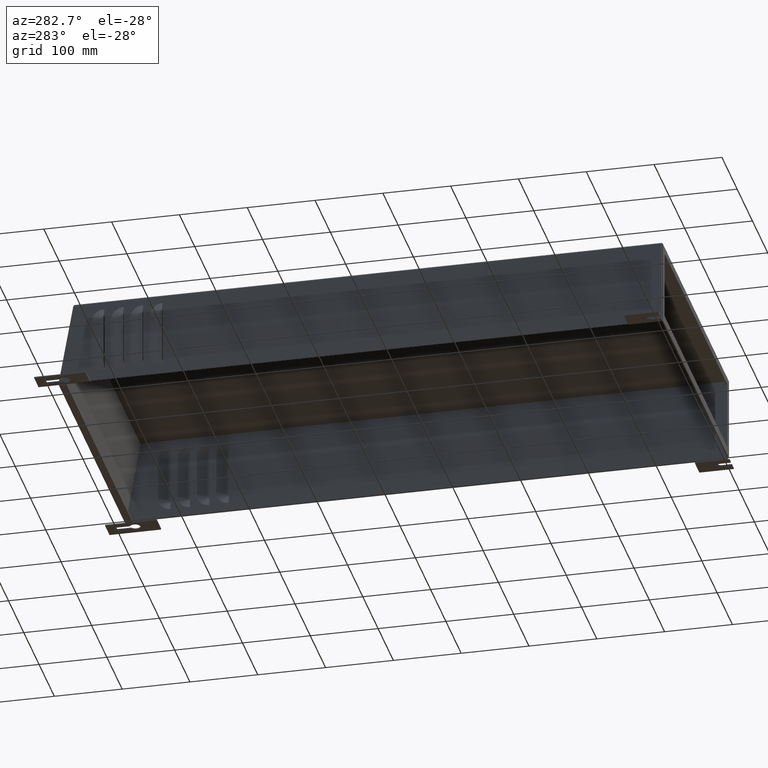
[diagram: clean part render]
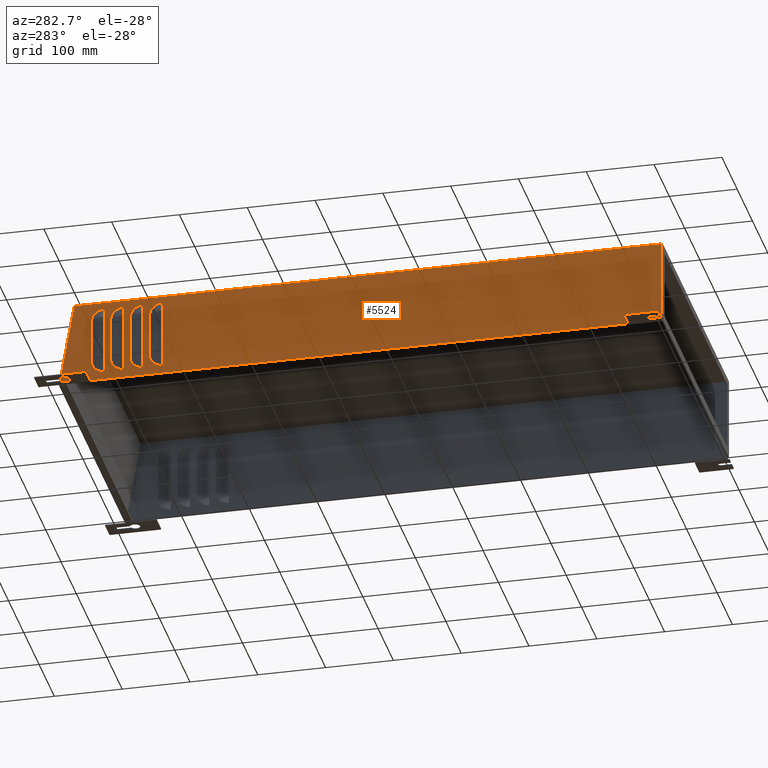
[diagram: same view with one face highlighted and labeled with its STEP entity id]
A machine part, auxiliary view. The second image highlights one B-rep face of the part: STEP entity #5524.
In plain terms, the highlighted planar face has unit normal (-1, -0, -0).
Its self-contained STEP definition (entity closure, byte-faithful):
#51=FACE_BOUND('',#849,.T.);
#52=FACE_BOUND('',#850,.T.);
#53=FACE_BOUND('',#851,.T.);
#54=FACE_BOUND('',#852,.T.);
#253=PLANE('',#6081);
#537=FACE_OUTER_BOUND('',#848,.T.);
#848=EDGE_LOOP('',(#4419,#4420,#4421,#4422,#4423,#4424,#4425,#4426,#4427,
#4428,#4429,#4430));
#849=EDGE_LOOP('',(#4431,#4432,#4433,#4434,#4435,#4436));
#850=EDGE_LOOP('',(#4437,#4438,#4439,#4440,#4441,#4442));
#851=EDGE_LOOP('',(#4443,#4444,#4445,#4446,#4447,#4448));
#852=EDGE_LOOP('',(#4449,#4450,#4451,#4452,#4453,#4454));
#989=CIRCLE('',#5680,0.75);
#1006=CIRCLE('',#5710,0.75);
#1021=CIRCLE('',#5730,0.75);
#1038=CIRCLE('',#5760,0.75);
#1053=CIRCLE('',#5780,0.75);
#1070=CIRCLE('',#5810,0.75);
#1085=CIRCLE('',#5830,0.75);
#1102=CIRCLE('',#5860,0.75);
#1327=LINE('',#7936,#1785);
#1331=LINE('',#7952,#1789);
#1347=LINE('',#8036,#1805);
#1350=LINE('',#8076,#1808);
#1351=LINE('',#8080,#1809);
#1355=LINE('',#8096,#1813);
#1371=LINE('',#8180,#1829);
#1374=LINE('',#8220,#1832);
#1375=LINE('',#8224,#1833);
#1379=LINE('',#8240,#1837);
#1395=LINE('',#8324,#1853);
#1398=LINE('',#8364,#1856);
#1399=LINE('',#8368,#1857);
#1403=LINE('',#8384,#1861);
#1419=LINE('',#8468,#1877);
#1422=LINE('',#8508,#1880);
#1523=LINE('',#9097,#1981);
#1540=LINE('',#9138,#1998);
#1542=LINE('',#9142,#2000);
#1546=LINE('',#9148,#2004);
#1547=LINE('',#9151,#2005);
#1548=LINE('',#9153,#2006);
#1549=LINE('',#9155,#2007);
#1550=LINE('',#9157,#2008);
#1551=LINE('',#9159,#2009);
#1552=LINE('',#9161,#2010);
#1553=LINE('',#9163,#2011);
#1554=LINE('',#9164,#2012);
#1785=VECTOR('',#6347,0.208102228975084);
#1789=VECTOR('',#6359,0.208102228975082);
#1805=VECTOR('',#6431,2.5);
#1808=VECTOR('',#6468,3.58379554204983);
#1809=VECTOR('',#6471,0.208102228975078);
#1813=VECTOR('',#6483,0.208102228975082);
#1829=VECTOR('',#6555,2.5);
#1832=VECTOR('',#6592,3.58379554204984);
#1833=VECTOR('',#6595,0.208102228975084);
#1837=VECTOR('',#6607,0.208102228975082);
#1853=VECTOR('',#6679,2.5);
#1856=VECTOR('',#6716,3.58379554204983);
#1857=VECTOR('',#6719,0.208102228975078);
#1861=VECTOR('',#6731,0.208102228975082);
#1877=VECTOR('',#6803,2.5);
#1880=VECTOR('',#6840,3.58379554204984);
#1981=VECTOR('',#7347,1.9148);
#1998=VECTOR('',#7392,0.0314500000000002);
#2000=VECTOR('',#7396,0.000199999999999981);
#2004=VECTOR('',#7402,0.000199999999999981);
#2005=VECTOR('',#7405,4.8635);
#2006=VECTOR('',#7406,34.0919917236158);
#2007=VECTOR('',#7407,4.93852732690635);
#2008=VECTOR('',#7408,1.78455799429155);
#2009=VECTOR('',#7409,0.000199999999999981);
#2010=VECTOR('',#7410,0.000199999999998583);
#2011=VECTOR('',#7411,0.0314500000000002);
#2012=VECTOR('',#7412,31.2498);
#2231=VERTEX_POINT('',#7934);
#2232=VERTEX_POINT('',#7935);
#2239=VERTEX_POINT('',#7949);
#2240=VERTEX_POINT('',#7951);
#2252=VERTEX_POINT('',#8001);
#2262=VERTEX_POINT('',#8035);
#2265=VERTEX_POINT('',#8078);
#2266=VERTEX_POINT('',#8079);
#2273=VERTEX_POINT('',#8093);
#2274=VERTEX_POINT('',#8095);
#2286=VERTEX_POINT('',#8145);
#2296=VERTEX_POINT('',#8179);
#2299=VERTEX_POINT('',#8222);
#2300=VERTEX_POINT('',#8223);
#2307=VERTEX_POINT('',#8237);
#2308=VERTEX_POINT('',#8239);
#2320=VERTEX_POINT('',#8289);
#2330=VERTEX_POINT('',#8323);
#2333=VERTEX_POINT('',#8366);
#2334=VERTEX_POINT('',#8367);
#2341=VERTEX_POINT('',#8381);
#2342=VERTEX_POINT('',#8383);
#2354=VERTEX_POINT('',#8433);
#2364=VERTEX_POINT('',#8467);
#2506=VERTEX_POINT('',#9094);
#2507=VERTEX_POINT('',#9096);
#2516=VERTEX_POINT('',#9135);
#2517=VERTEX_POINT('',#9137);
#2518=VERTEX_POINT('',#9141);
#2520=VERTEX_POINT('',#9150);
#2521=VERTEX_POINT('',#9152);
#2522=VERTEX_POINT('',#9154);
#2523=VERTEX_POINT('',#9156);
#2524=VERTEX_POINT('',#9158);
#2525=VERTEX_POINT('',#9160);
#2526=VERTEX_POINT('',#9162);
#2720=EDGE_CURVE('',#2231,#2232,#1327,.T.);
#2728=EDGE_CURVE('',#2240,#2239,#1331,.T.);
#2745=EDGE_CURVE('',#2252,#2231,#989,.T.);
#2762=EDGE_CURVE('',#2262,#2252,#1347,.T.);
#2773=EDGE_CURVE('',#2239,#2262,#1006,.T.);
#2775=EDGE_CURVE('',#2232,#2240,#1350,.T.);
#2776=EDGE_CURVE('',#2265,#2266,#1351,.T.);
#2784=EDGE_CURVE('',#2274,#2273,#1355,.T.);
#2801=EDGE_CURVE('',#2286,#2265,#1021,.T.);
#2818=EDGE_CURVE('',#2296,#2286,#1371,.T.);
#2829=EDGE_CURVE('',#2273,#2296,#1038,.T.);
#2831=EDGE_CURVE('',#2266,#2274,#1374,.T.);
#2832=EDGE_CURVE('',#2299,#2300,#1375,.T.);
#2840=EDGE_CURVE('',#2308,#2307,#1379,.T.);
#2857=EDGE_CURVE('',#2320,#2299,#1053,.T.);
#2874=EDGE_CURVE('',#2330,#2320,#1395,.T.);
#2885=EDGE_CURVE('',#2307,#2330,#1070,.T.);
#2887=EDGE_CURVE('',#2300,#2308,#1398,.T.);
#2888=EDGE_CURVE('',#2333,#2334,#1399,.T.);
#2896=EDGE_CURVE('',#2342,#2341,#1403,.T.);
#2913=EDGE_CURVE('',#2354,#2333,#1085,.T.);
#2930=EDGE_CURVE('',#2364,#2354,#1419,.T.);
#2941=EDGE_CURVE('',#2341,#2364,#1102,.T.);
#2943=EDGE_CURVE('',#2334,#2342,#1422,.T.);
#3173=EDGE_CURVE('',#2507,#2506,#1523,.T.);
#3193=EDGE_CURVE('',#2517,#2516,#1540,.T.);
#3195=EDGE_CURVE('',#2518,#2507,#1542,.T.);
#3199=EDGE_CURVE('',#2516,#2518,#1546,.T.);
#3200=EDGE_CURVE('',#2520,#2506,#1547,.T.);
#3201=EDGE_CURVE('',#2520,#2521,#1548,.T.);
#3202=EDGE_CURVE('',#2522,#2521,#1549,.T.);
#3203=EDGE_CURVE('',#2522,#2523,#1550,.T.);
#3204=EDGE_CURVE('',#2523,#2524,#1551,.T.);
#3205=EDGE_CURVE('',#2524,#2525,#1552,.T.);
#3206=EDGE_CURVE('',#2525,#2526,#1553,.T.);
#3207=EDGE_CURVE('',#2526,#2517,#1554,.T.);
#4419=ORIENTED_EDGE('',*,*,#3193,.T.);
#4420=ORIENTED_EDGE('',*,*,#3199,.T.);
#4421=ORIENTED_EDGE('',*,*,#3195,.T.);
#4422=ORIENTED_EDGE('',*,*,#3173,.T.);
#4423=ORIENTED_EDGE('',*,*,#3200,.F.);
#4424=ORIENTED_EDGE('',*,*,#3201,.T.);
#4425=ORIENTED_EDGE('',*,*,#3202,.F.);
#4426=ORIENTED_EDGE('',*,*,#3203,.T.);
#4427=ORIENTED_EDGE('',*,*,#3204,.T.);
#4428=ORIENTED_EDGE('',*,*,#3205,.T.);
#4429=ORIENTED_EDGE('',*,*,#3206,.T.);
#4430=ORIENTED_EDGE('',*,*,#3207,.T.);
#4431=ORIENTED_EDGE('',*,*,#2745,.T.);
#4432=ORIENTED_EDGE('',*,*,#2720,.T.);
#4433=ORIENTED_EDGE('',*,*,#2775,.T.);
#4434=ORIENTED_EDGE('',*,*,#2728,.T.);
#4435=ORIENTED_EDGE('',*,*,#2773,.T.);
#4436=ORIENTED_EDGE('',*,*,#2762,.T.);
#4437=ORIENTED_EDGE('',*,*,#2801,.T.);
#4438=ORIENTED_EDGE('',*,*,#2776,.T.);
#4439=ORIENTED_EDGE('',*,*,#2831,.T.);
#4440=ORIENTED_EDGE('',*,*,#2784,.T.);
#4441=ORIENTED_EDGE('',*,*,#2829,.T.);
#4442=ORIENTED_EDGE('',*,*,#2818,.T.);
#4443=ORIENTED_EDGE('',*,*,#2857,.T.);
#4444=ORIENTED_EDGE('',*,*,#2832,.T.);
#4445=ORIENTED_EDGE('',*,*,#2887,.T.);
#4446=ORIENTED_EDGE('',*,*,#2840,.T.);
#4447=ORIENTED_EDGE('',*,*,#2885,.T.);
#4448=ORIENTED_EDGE('',*,*,#2874,.T.);
#4449=ORIENTED_EDGE('',*,*,#2913,.T.);
#4450=ORIENTED_EDGE('',*,*,#2888,.T.);
#4451=ORIENTED_EDGE('',*,*,#2943,.T.);
#4452=ORIENTED_EDGE('',*,*,#2896,.T.);
#4453=ORIENTED_EDGE('',*,*,#2941,.T.);
#4454=ORIENTED_EDGE('',*,*,#2930,.T.);
#5524=ADVANCED_FACE('',(#537,#51,#52,#53,#54),#253,.T.);
#5680=AXIS2_PLACEMENT_3D('',#8002,#6392,#6393);
#5710=AXIS2_PLACEMENT_3D('',#8073,#6463,#6464);
#5730=AXIS2_PLACEMENT_3D('',#8146,#6516,#6517);
#5760=AXIS2_PLACEMENT_3D('',#8217,#6587,#6588);
#5780=AXIS2_PLACEMENT_3D('',#8290,#6640,#6641);
#5810=AXIS2_PLACEMENT_3D('',#8361,#6711,#6712);
#5830=AXIS2_PLACEMENT_3D('',#8434,#6764,#6765);
#5860=AXIS2_PLACEMENT_3D('',#8505,#6835,#6836);
#6081=AXIS2_PLACEMENT_3D('',#9149,#7403,#7404);
#6347=DIRECTION('',(1.57247581638412E-16,2.06739690681419E-17,-1.));
#6359=DIRECTION('',(1.57247581638412E-16,2.06739690681419E-17,-1.));
#6392=DIRECTION('center_axis',(1.,3.02856690646903E-16,1.57247581638412E-16));
#6393=DIRECTION('ref_axis',(0.,2.06739690681419E-17,-1.));
#6431=DIRECTION('',(-1.57247581638412E-16,2.59067265483079E-16,1.));
#6463=DIRECTION('center_axis',(1.,3.02856690646903E-16,1.57247581638412E-16));
#6464=DIRECTION('ref_axis',(0.,-1.,-2.53791664527492E-16));
#6468=DIRECTION('',(1.57247581638412E-16,2.06739690681419E-17,-1.));
#6471=DIRECTION('',(1.57247581638412E-16,2.06739690681419E-17,-1.));
#6483=DIRECTION('',(1.57247581638412E-16,2.06739690681419E-17,-1.));
#6516=DIRECTION('center_axis',(1.,3.02856690646903E-16,1.57247581638412E-16));
#6517=DIRECTION('ref_axis',(0.,2.06739690681419E-17,-1.));
#6555=DIRECTION('',(-1.57247581638412E-16,2.59067265483079E-16,1.));
#6587=DIRECTION('center_axis',(1.,3.02856690646903E-16,1.57247581638412E-16));
#6588=DIRECTION('ref_axis',(0.,-1.,-2.53791664527492E-16));
#6592=DIRECTION('',(1.57247581638412E-16,2.06739690681419E-17,-1.));
#6595=DIRECTION('',(1.57247581638412E-16,2.06739690681419E-17,-1.));
#6607=DIRECTION('',(1.57247581638412E-16,2.06739690681419E-17,-1.));
#6640=DIRECTION('center_axis',(1.,3.02856690646903E-16,1.57247581638412E-16));
#6641=DIRECTION('ref_axis',(0.,2.06739690681419E-17,-1.));
#6679=DIRECTION('',(-1.57247581638412E-16,2.59067265483079E-16,1.));
#6711=DIRECTION('center_axis',(1.,3.02856690646903E-16,1.57247581638412E-16));
#6712=DIRECTION('ref_axis',(0.,-1.,-2.53791664527492E-16));
#6716=DIRECTION('',(1.57247581638412E-16,2.06739690681419E-17,-1.));
#6719=DIRECTION('',(1.57247581638412E-16,2.06739690681419E-17,-1.));
#6731=DIRECTION('',(1.57247581638412E-16,2.06739690681419E-17,-1.));
#6764=DIRECTION('center_axis',(1.,3.02856690646903E-16,1.57247581638412E-16));
#6765=DIRECTION('ref_axis',(0.,2.06739690681419E-17,-1.));
#6803=DIRECTION('',(-1.57247581638412E-16,2.59067265483079E-16,1.));
#6835=DIRECTION('center_axis',(1.,3.02856690646903E-16,1.57247581638412E-16));
#6836=DIRECTION('ref_axis',(0.,-1.,-2.53791664527492E-16));
#6840=DIRECTION('',(1.57247581638412E-16,2.06739690681419E-17,-1.));
#7347=DIRECTION('',(3.02856690646903E-16,-1.,0.));
#7392=DIRECTION('',(-1.57247581638412E-16,0.,1.));
#7396=DIRECTION('',(1.57247581638412E-16,0.,-1.));
#7402=DIRECTION('',(3.02856690646903E-16,-1.,0.));
#7403=DIRECTION('center_axis',(-1.,-3.02856690646903E-16,-1.57247581638412E-16));
#7404=DIRECTION('ref_axis',(-1.57247581638411E-16,0.,1.));
#7405=DIRECTION('',(1.60812264967664E-16,4.93038065763132E-32,-1.));
#7406=DIRECTION('',(-3.02856690646903E-16,1.,-3.55825625930582E-34));
#7407=DIRECTION('',(-1.02268125114846E-16,-0.173648177666961,0.984807753012203));
#7408=DIRECTION('',(3.02856690646903E-16,-1.,0.));
#7409=DIRECTION('',(-1.57247581638412E-16,0.,1.));
#7410=DIRECTION('',(3.02856690646903E-16,-1.,0.));
#7411=DIRECTION('',(1.57247581638412E-16,0.,-1.));
#7412=DIRECTION('',(3.05286475461148E-16,-1.,0.));
#7934=CARTESIAN_POINT('',(-1.04211155090787E-14,29.0522753192199,-0.426));
#7935=CARTESIAN_POINT('',(-1.03919497678989E-14,29.0522753192199,-0.634102228975084));
#7936=CARTESIAN_POINT('',(-9.94856362673891E-15,29.0522753192199,-3.43114562714467));
#7949=CARTESIAN_POINT('',(-9.79212518252501E-15,29.0522753192199,-4.426));
#7951=CARTESIAN_POINT('',(-9.82372538521669E-15,29.0522753192199,-4.21789777102492));
#7952=CARTESIAN_POINT('',(-9.94856362673891E-15,29.0522753192199,-3.43114562714467));
#8001=CARTESIAN_POINT('',(-1.0530322340835E-14,29.8022753192199,-1.176));
#8002=CARTESIAN_POINT('Origin',(-6.50179822492095E-15,29.0522753192199,
-1.176));
#8035=CARTESIAN_POINT('',(-1.0137203386739E-14,29.8022753192199,-3.676));
#8036=CARTESIAN_POINT('',(-1.04312334648865E-14,29.8022753192199,-1.80614562714468));
#8073=CARTESIAN_POINT('Origin',(-6.50179822492095E-15,29.0522753192199,
-3.676));
#8076=CARTESIAN_POINT('',(-9.94856362673891E-15,29.0522753192199,-3.43114562714467));
#8078=CARTESIAN_POINT('',(-1.07618292860564E-14,30.1772753192199,-0.426));
#8079=CARTESIAN_POINT('',(-1.07306989191132E-14,30.1772753192199,-0.634102228975078));
#8080=CARTESIAN_POINT('',(-1.02892774037167E-14,30.1772753192199,-3.43114562714467));
#8093=CARTESIAN_POINT('',(-1.01328389595028E-14,30.1772753192199,-4.426));
#8095=CARTESIAN_POINT('',(-1.01624745364311E-14,30.1772753192199,-4.21789777102492));
#8096=CARTESIAN_POINT('',(-1.02892774037167E-14,30.1772753192199,-3.43114562714467));
#8145=CARTESIAN_POINT('',(-1.08710361178128E-14,30.9272753192199,-1.176));
#8146=CARTESIAN_POINT('Origin',(-6.50179822492095E-15,30.1772753192199,
-1.176));
#8179=CARTESIAN_POINT('',(-1.04779171637168E-14,30.9272753192199,-3.676));
#8180=CARTESIAN_POINT('',(-1.07719472418643E-14,30.9272753192199,-1.80614562714468));
#8217=CARTESIAN_POINT('Origin',(-6.50179822492095E-15,30.1772753192199,
-3.676));
#8220=CARTESIAN_POINT('',(-1.02892774037167E-14,30.1772753192199,-3.43114562714467));
#8222=CARTESIAN_POINT('',(-1.11025430630342E-14,31.3022753192199,-0.426));
#8223=CARTESIAN_POINT('',(-1.10749117663149E-14,31.3022753192199,-0.634102228975084));
#8224=CARTESIAN_POINT('',(-1.06299911806944E-14,31.3022753192199,-3.43114562714467));
#8237=CARTESIAN_POINT('',(-1.04735527364805E-14,31.3022753192199,-4.426));
#8239=CARTESIAN_POINT('',(-1.05066873836328E-14,31.3022753192199,-4.21789777102492));
#8240=CARTESIAN_POINT('',(-1.06299911806944E-14,31.3022753192199,-3.43114562714467));
#8289=CARTESIAN_POINT('',(-1.12117498947906E-14,32.0522753192199,-1.176));
#8290=CARTESIAN_POINT('Origin',(-6.50179822492095E-15,31.3022753192199,
-1.176));
#8323=CARTESIAN_POINT('',(-1.08186309406945E-14,32.0522753192199,-3.676));
#8324=CARTESIAN_POINT('',(-1.1112661018842E-14,32.0522753192199,-1.80614562714468));
#8361=CARTESIAN_POINT('Origin',(-6.50179822492095E-15,31.3022753192199,
-3.676));
#8364=CARTESIAN_POINT('',(-1.06299911806944E-14,31.3022753192199,-3.43114562714467));
#8366=CARTESIAN_POINT('',(-1.14432568400119E-14,32.4272753192199,-0.426));
#8367=CARTESIAN_POINT('',(-1.14136609175293E-14,32.4272753192199,-0.634102228975078));
#8368=CARTESIAN_POINT('',(-1.09707049576722E-14,32.4272753192199,-3.43114562714467));
#8381=CARTESIAN_POINT('',(-1.08142665134583E-14,32.4272753192199,-4.426));
#8383=CARTESIAN_POINT('',(-1.08454365348471E-14,32.4272753192199,-4.21789777102492));
#8384=CARTESIAN_POINT('',(-1.09707049576722E-14,32.4272753192199,-3.43114562714467));
#8433=CARTESIAN_POINT('',(-1.15524636717683E-14,33.1772753192199,-1.176));
#8434=CARTESIAN_POINT('Origin',(-6.50179822492095E-15,32.4272753192199,
-1.176));
#8467=CARTESIAN_POINT('',(-1.11593447176723E-14,33.1772753192199,-3.676));
#8468=CARTESIAN_POINT('',(-1.14533747958198E-14,33.1772753192199,-1.80614562714468));
#8505=CARTESIAN_POINT('Origin',(-6.50179822492095E-15,32.4272753192199,
-3.676));
#8508=CARTESIAN_POINT('',(-1.09707049576722E-14,32.4272753192199,-3.43114562714467));
#9094=CARTESIAN_POINT('',(-9.33481308593048E-16,0.0747071067811871,-4.89475));
#9096=CARTESIAN_POINT('',(-1.514973615578E-15,1.98950710678118,-4.89475));
#9097=CARTESIAN_POINT('',(-3.52878824970904E-15,8.61479673586119,-4.89475));
#9135=CARTESIAN_POINT('',(-1.51506612238942E-15,1.98970710678118,-4.89455));
#9137=CARTESIAN_POINT('',(-1.5101206859469E-15,1.98970710678118,-4.926));
#9138=CARTESIAN_POINT('',(-1.71564460032531E-15,1.98970710678118,-3.66542062714467));
#9141=CARTESIAN_POINT('',(-1.51500506509433E-15,1.98950710678118,-4.89455));
#9142=CARTESIAN_POINT('',(-1.71311131076592E-15,1.98950710678118,-3.68114562714467));
#9148=CARTESIAN_POINT('',(-3.81877469485071E-15,9.57219673586119,-4.89455));
#9149=CARTESIAN_POINT('Origin',(-6.50179822492095E-15,17.1548863649412,
-2.43629125428935));
#9150=CARTESIAN_POINT('',(-1.7046731480465E-15,0.0747071067811836,-0.0312500000000008));
#9151=CARTESIAN_POINT('',(-1.7046731480465E-15,0.074707106781187,-0.0312500000000009));
#9152=CARTESIAN_POINT('',(-1.19873489961988E-14,34.166698830397,-0.0312500000000001));
#9153=CARTESIAN_POINT('',(-6.87332955205929E-15,17.1597556824706,-0.0312499999999997));
#9154=CARTESIAN_POINT('',(-1.15439569720243E-14,35.0242651010727,-4.89475));
#9155=CARTESIAN_POINT('',(-1.19354438843192E-14,34.3316266348584,-0.966602058991277));
#9156=CARTESIAN_POINT('',(-1.10008705109168E-14,33.2397071067812,-4.89475));
#9157=CARTESIAN_POINT('',(-8.55090932236131E-15,25.1972967358612,-4.89475));
#9158=CARTESIAN_POINT('',(-1.10009019604331E-14,33.2397071067812,-4.89455));
#9159=CARTESIAN_POINT('',(-1.1179916183041E-14,33.2397071067812,-3.66542062714467));
#9160=CARTESIAN_POINT('',(-1.1000840903138E-14,33.2395071067812,-4.89455));
#9161=CARTESIAN_POINT('',(-8.55091048620857E-15,25.1971967358612,-4.89455));
#9162=CARTESIAN_POINT('',(-1.09958954666955E-14,33.2395071067812,-4.926));
#9163=CARTESIAN_POINT('',(-1.11773828934816E-14,33.2395071067812,-3.68114562714467));
#9164=CARTESIAN_POINT('',(-3.5273621294193E-14,112.809511975578,-4.926));